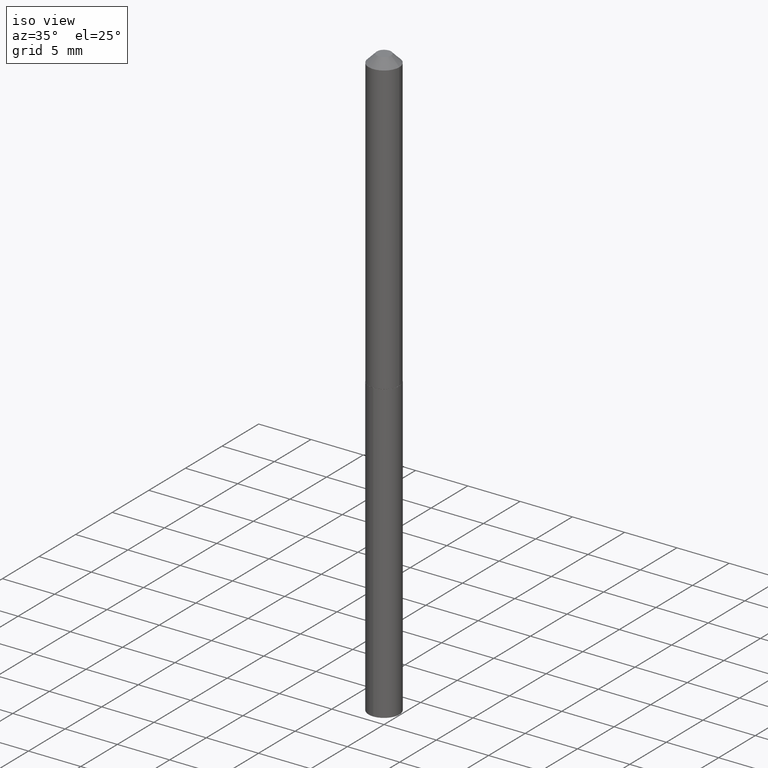
[diagram: clean part render]
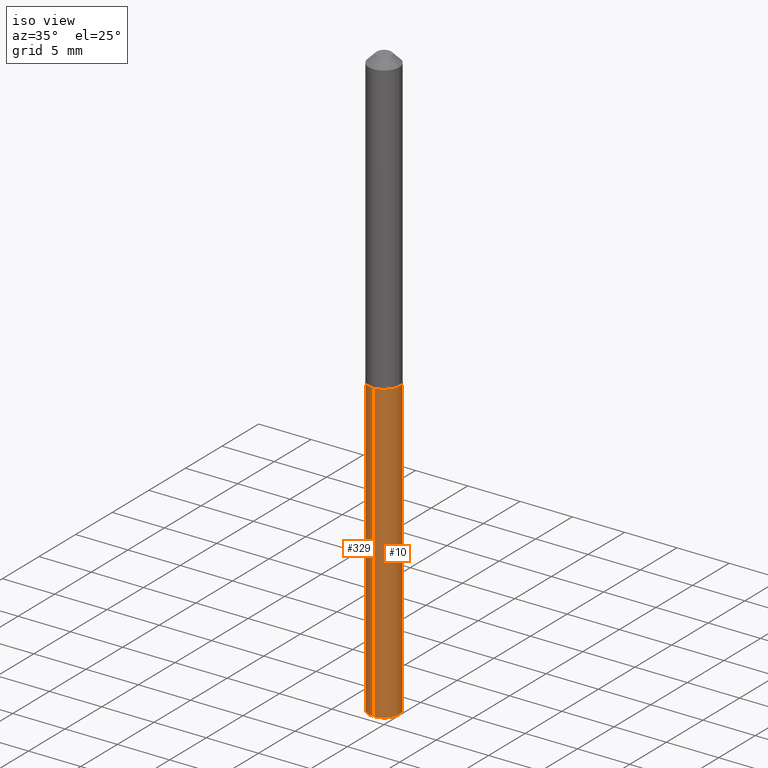
[diagram: same view with one multi-face feature highlighted, each face labeled with its STEP entity id]
A machine part, iso view. The highlighted faces form ONE feature: a constant-radius fillet chain: 2 tangent blend faces with common blend radius 1.4732 mm. The faces share edges in the B-rep.
Their STEP definitions:
[1] entity #10 (Cylinder):
#10 = ADVANCED_FACE ( 'NONE', ( #233 ), #119, .T. ) ;
#14 = ORIENTED_EDGE ( 'NONE', *, *, #99, .T. ) ;
#18 = VECTOR ( 'NONE', #354, 39.37007874015748143 ) ;
#28 = CARTESIAN_POINT ( 'NONE',  ( 4.121147867409127080E-16, 0.05799999999999219669, -2.234458946838995264 ) ) ;
#35 = EDGE_LOOP ( 'NONE', ( #321, #14, #247, #178 ) ) ;
#38 = VECTOR ( 'NONE', #210, 39.37007874015748143 ) ;
#44 = AXIS2_PLACEMENT_3D ( 'NONE', #343, #292, #76 ) ;
#56 = CARTESIAN_POINT ( 'NONE',  ( 4.121147867409129052E-16, 0.05799999999999611022, -1.116000000000000103 ) ) ;
#58 = CARTESIAN_POINT ( 'NONE',  ( 5.465261960279172844E-29, -7.800193636785316454E-15, -2.234458946838994819 ) ) ;
#63 = CARTESIAN_POINT ( 'NONE',  ( -4.050118353057761076E-16, -0.05800000000000389566, -1.115999999999999881 ) ) ;
#76 = DIRECTION ( 'NONE',  ( -6.982962677686265922E-15, -1.000000000000000000, 2.355041373848502747E-15 ) ) ;
#97 = DIRECTION ( 'NONE',  ( -2.446329192778527285E-29, 3.490249216271246596E-15, 1.000000000000000000 ) ) ;
#99 = EDGE_CURVE ( 'NONE', #221, #109, #378, .T. ) ;
#109 = VERTEX_POINT ( 'NONE', #56 ) ;
#119 = CYLINDRICAL_SURFACE ( 'NONE', #44, 0.05800000000000000294 ) ;
#124 = CARTESIAN_POINT ( 'NONE',  ( 4.121147867408853444E-16, 0.05799999999999611022, -1.116000000000000103 ) ) ;
#154 = DIRECTION ( 'NONE',  ( -6.982962677686265922E-15, -1.000000000000000000, 2.355041373848502747E-15 ) ) ;
#162 = AXIS2_PLACEMENT_3D ( 'NONE', #58, #97, #215 ) ;
#171 = VERTEX_POINT ( 'NONE', #323 ) ;
#178 = ORIENTED_EDGE ( 'NONE', *, *, #198, .F. ) ;
#179 = EDGE_CURVE ( 'NONE', #341, #221, #297, .T. ) ;
#198 = EDGE_CURVE ( 'NONE', #341, #171, #306, .T. ) ;
#204 = DIRECTION ( 'NONE',  ( -2.446329192778527285E-29, 3.490249216271246596E-15, 1.000000000000000000 ) ) ;
#210 = DIRECTION ( 'NONE',  ( -2.446329192778527285E-29, 3.490249216271246596E-15, 1.000000000000000000 ) ) ;
#215 = DIRECTION ( 'NONE',  ( -6.982962677686265922E-15, -1.000000000000000000, 4.710082747697005495E-15 ) ) ;
#221 = VERTEX_POINT ( 'NONE', #28 ) ;
#233 = FACE_OUTER_BOUND ( 'NONE', #35, .T. ) ;
#236 = AXIS2_PLACEMENT_3D ( 'NONE', #270, #204, #154 ) ;
#247 = ORIENTED_EDGE ( 'NONE', *, *, #303, .F. ) ;
#270 = CARTESIAN_POINT ( 'NONE',  ( 2.729143187702612168E-29, -3.896493174148950582E-15, -1.115999999999999881 ) ) ;
#292 = DIRECTION ( 'NONE',  ( -2.446329192778527285E-29, 3.490249216271246596E-15, 1.000000000000000000 ) ) ;
#297 = CIRCLE ( 'NONE', #162, 0.05800000000000000294 ) ;
#303 = EDGE_CURVE ( 'NONE', #171, #109, #333, .T. ) ;
#306 = LINE ( 'NONE', #63, #18 ) ;
#321 = ORIENTED_EDGE ( 'NONE', *, *, #179, .T. ) ;
#323 = CARTESIAN_POINT ( 'NONE',  ( -4.050118353057761076E-16, -0.05800000000000389566, -1.115999999999999881 ) ) ;
#333 = CIRCLE ( 'NONE', #236, 0.05800000000000000294 ) ;
#341 = VERTEX_POINT ( 'NONE', #363 ) ;
#343 = CARTESIAN_POINT ( 'NONE',  ( 2.729143187702612168E-29, -3.896493174148950582E-15, -1.115999999999999881 ) ) ;
#354 = DIRECTION ( 'NONE',  ( -2.446329192778527285E-29, 3.490249216271246596E-15, 1.000000000000000000 ) ) ;
#363 = CARTESIAN_POINT ( 'NONE',  ( -4.050118353057487440E-16, -0.05800000000000780226, -2.234458946838994819 ) ) ;
#378 = LINE ( 'NONE', #124, #38 ) ;
[2] entity #329 (Cylinder):
#18 = VECTOR ( 'NONE', #354, 39.37007874015748143 ) ;
#28 = CARTESIAN_POINT ( 'NONE',  ( 4.121147867409127080E-16, 0.05799999999999219669, -2.234458946838995264 ) ) ;
#34 = ORIENTED_EDGE ( 'NONE', *, *, #334, .F. ) ;
#38 = VECTOR ( 'NONE', #210, 39.37007874015748143 ) ;
#52 = DIRECTION ( 'NONE',  ( -6.982962677686265922E-15, -1.000000000000000000, 2.355041373848502747E-15 ) ) ;
#56 = CARTESIAN_POINT ( 'NONE',  ( 4.121147867409129052E-16, 0.05799999999999611022, -1.116000000000000103 ) ) ;
#61 = EDGE_CURVE ( 'NONE', #221, #341, #364, .T. ) ;
#63 = CARTESIAN_POINT ( 'NONE',  ( -4.050118353057761076E-16, -0.05800000000000389566, -1.115999999999999881 ) ) ;
#68 = CARTESIAN_POINT ( 'NONE',  ( 2.729143187702612168E-29, -3.896493174148950582E-15, -1.115999999999999881 ) ) ;
#82 = CARTESIAN_POINT ( 'NONE',  ( 5.465261960279172844E-29, -7.800193636785316454E-15, -2.234458946838994819 ) ) ;
#93 = FACE_OUTER_BOUND ( 'NONE', #368, .T. ) ;
#99 = EDGE_CURVE ( 'NONE', #221, #109, #378, .T. ) ;
#109 = VERTEX_POINT ( 'NONE', #56 ) ;
#114 = AXIS2_PLACEMENT_3D ( 'NONE', #125, #129, #52 ) ;
#116 = DIRECTION ( 'NONE',  ( -6.982962677686265922E-15, -1.000000000000000000, 4.710082747697005495E-15 ) ) ;
#124 = CARTESIAN_POINT ( 'NONE',  ( 4.121147867408853444E-16, 0.05799999999999611022, -1.116000000000000103 ) ) ;
#125 = CARTESIAN_POINT ( 'NONE',  ( 2.729143187702612168E-29, -3.896493174148950582E-15, -1.115999999999999881 ) ) ;
#128 = CIRCLE ( 'NONE', #311, 0.05800000000000000294 ) ;
#129 = DIRECTION ( 'NONE',  ( -2.446329192778527285E-29, 3.490249216271246596E-15, 1.000000000000000000 ) ) ;
#134 = DIRECTION ( 'NONE',  ( -2.446329192778527285E-29, 3.490249216271246596E-15, 1.000000000000000000 ) ) ;
#171 = VERTEX_POINT ( 'NONE', #323 ) ;
#173 = ORIENTED_EDGE ( 'NONE', *, *, #61, .T. ) ;
#198 = EDGE_CURVE ( 'NONE', #341, #171, #306, .T. ) ;
#210 = DIRECTION ( 'NONE',  ( -2.446329192778527285E-29, 3.490249216271246596E-15, 1.000000000000000000 ) ) ;
#221 = VERTEX_POINT ( 'NONE', #28 ) ;
#230 = AXIS2_PLACEMENT_3D ( 'NONE', #82, #371, #116 ) ;
#294 = ORIENTED_EDGE ( 'NONE', *, *, #198, .T. ) ;
#306 = LINE ( 'NONE', #63, #18 ) ;
#311 = AXIS2_PLACEMENT_3D ( 'NONE', #68, #134, #313 ) ;
#313 = DIRECTION ( 'NONE',  ( -6.982962677686265922E-15, -1.000000000000000000, 2.355041373848502747E-15 ) ) ;
#315 = ORIENTED_EDGE ( 'NONE', *, *, #99, .F. ) ;
#323 = CARTESIAN_POINT ( 'NONE',  ( -4.050118353057761076E-16, -0.05800000000000389566, -1.115999999999999881 ) ) ;
#329 = ADVANCED_FACE ( 'NONE', ( #93 ), #374, .T. ) ;
#334 = EDGE_CURVE ( 'NONE', #109, #171, #128, .T. ) ;
#341 = VERTEX_POINT ( 'NONE', #363 ) ;
#354 = DIRECTION ( 'NONE',  ( -2.446329192778527285E-29, 3.490249216271246596E-15, 1.000000000000000000 ) ) ;
#363 = CARTESIAN_POINT ( 'NONE',  ( -4.050118353057487440E-16, -0.05800000000000780226, -2.234458946838994819 ) ) ;
#364 = CIRCLE ( 'NONE', #230, 0.05800000000000000294 ) ;
#368 = EDGE_LOOP ( 'NONE', ( #315, #173, #294, #34 ) ) ;
#371 = DIRECTION ( 'NONE',  ( -2.446329192778527285E-29, 3.490249216271246596E-15, 1.000000000000000000 ) ) ;
#374 = CYLINDRICAL_SURFACE ( 'NONE', #114, 0.05800000000000000294 ) ;
#378 = LINE ( 'NONE', #124, #38 ) ;